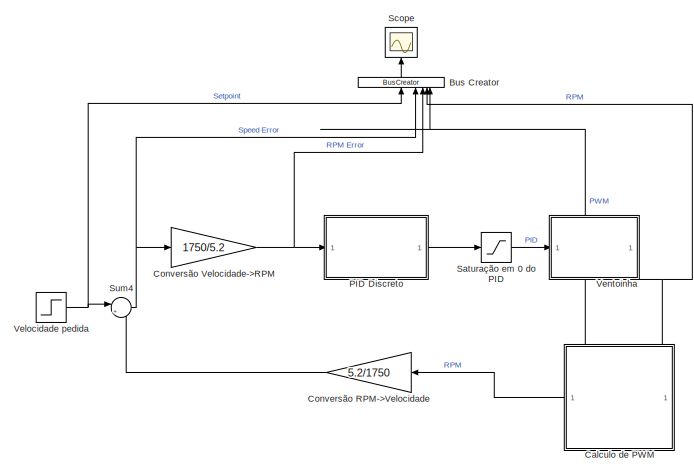
[diagram: root canvas - part 1/2, left side, full height]
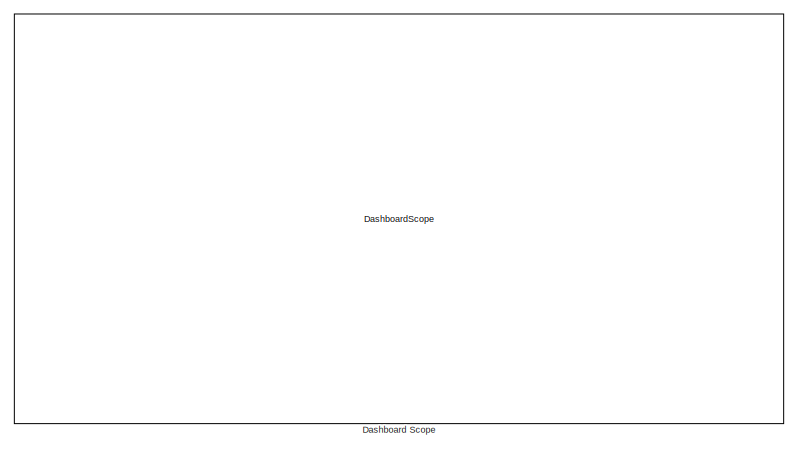
[diagram: root canvas - part 2/2, right side, full height]
MODEL slx_a42d7b1610c5
KIND model
CONFIG AbsTol = auto
CONFIG EnableMultiTasking = off
CONFIG FixedStep = auto
CONFIG MaxStep = auto
CONFIG MinStep = auto
CONFIG RelTol = 1e-3
CONFIG SampleTimeConstraint = Unconstrained
CONFIG SolverName = VariableStepAuto
CONFIG StartTime = 0.0
CONFIG StopTime = 100
BLOCK [BusCreator] Bus Creator
  DisplayOption = bar
  InheritFromInputs = on
  Inputs = 5
  NameLocation = right
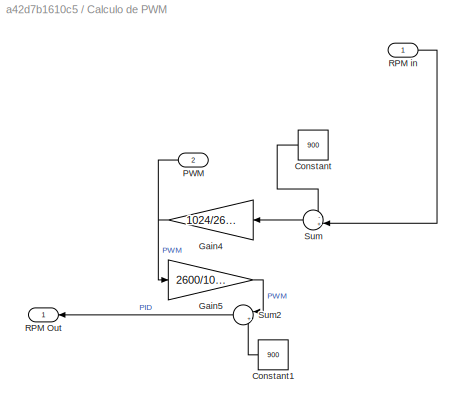
BLOCK [SubSystem] Calculo de PWM
  PortSchema = {"entries":[{"content":{"sides":[{"content":{"connectorIds":["Out2"]},"type":"ConnectorPlacement.EquallySpacedRectSide","uuid":"a240e75c-ea08-4aa3-822f-b73cad036c4a"},{"content":{"connectorIds":["Out1"],"side":"RIGHT"},"type":"ConnectorPlacement.EquallySpacedRectSide","uuid":"da6ac24d-a89c-4014-9688-266e0e62c615"},{"content":{"connectorIds":["In1"],"side":"TOP"},"type":"ConnectorPlacement.EquallyS...<+246ch>
BLOCK [Constant] Calculo de PWM/Constant
  Value = 900
BLOCK [Constant] Calculo de PWM/Constant1
  Value = 900
BLOCK [Gain] Calculo de PWM/Gain4
  Gain = 1024/2600
BLOCK [Gain] Calculo de PWM/Gain5
  Gain = 2600/1024
  NameLocation = top
BLOCK [Outport] Calculo de PWM/PWM
  Port = 2
BLOCK [Outport] Calculo de PWM/RPM Out
BLOCK [Inport] Calculo de PWM/RPM in
BLOCK [Sum] Calculo de PWM/Sum
  Inputs = -+|
BLOCK [Sum] Calculo de PWM/Sum2
  Inputs = |++
BLOCK [Gain] Conversão RPM->Velocidade
  Gain = 5.2/1750
  NameLocation = top
BLOCK [Gain] Conversão Velocidade->RPM
  Gain = 1750/5.2
BLOCK [DashboardScope] Dashboard Scope
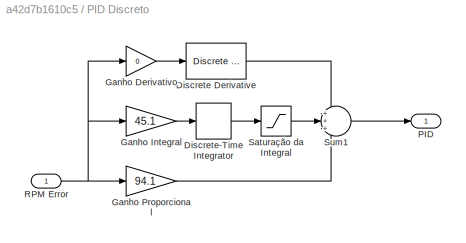
BLOCK [SubSystem] PID Discreto
BLOCK [Reference] PID Discreto/Discrete Derivative  REF=simulink/Discrete/Discrete Derivative
  SourceBlock = simulink/Discrete/Discrete Derivative
  SourceType = Discrete Derivative
BLOCK [DiscreteIntegrator] PID Discreto/Discrete-Time Integrator
  ICPrevOutput = DiscIntNeverNeededParam
  ICPrevScaledInput = DiscIntNeverNeededParam
  InitialConditionSetting = Auto
  SampleTime = -1
BLOCK [Gain] PID Discreto/Ganho Derivativo
  Gain = 0
BLOCK [Gain] PID Discreto/Ganho Integral
  Gain = 45.1
BLOCK [Gain] PID Discreto/Ganho Proporcional
  Gain = 94.1
BLOCK [Outport] PID Discreto/PID
BLOCK [Inport] PID Discreto/RPM Error
BLOCK [Saturate] PID Discreto/Saturação da Integral
  LowerLimit = 0
  UpperLimit = 10000
BLOCK [Sum] PID Discreto/Sum1
  Inputs = +++
BLOCK [Saturate] Saturação em 0 do PID
  LowerLimit = 0
  UpperLimit = 10000
BLOCK [Scope] Scope
  Floating = off
  NameLocation = right
  NumInputPorts = 1
  ScopeSpecificationString = Simulink.scopes.TimeScopeBlockCfg('CurrentConfiguration', extmgr.ConfigurationSet(extmgr.Configuration('Core','General UI',true),extmgr.Configuration('Core','Source UI',true),extmgr.Configuration('Sources','WiredSimulink',true),extmgr.Configuration('Visuals','Time Domain',true,'SerializedDisplays',{struct('MinYLimReal','-1265.22557','MaxYLimReal','2195.1067','YLabelReal','','MinYLimMag','  0.00000...<+1461ch>
BLOCK [Sum] Sum4
  Inputs = |+-
BLOCK [Step] Velocidade pedida
  After = 7
  SampleTime = 0
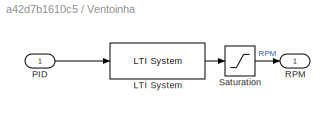
BLOCK [SubSystem] Ventoinha
  PortSchema = {"entries":[{"content":{"sides":[{"content":{"connectorIds":["In1"]},"type":"ConnectorPlacement.EquallySpacedRectSide","uuid":"b947db97-fa09-4e3b-b416-4cd776b95088"},{"content":{"side":"RIGHT"},"type":"ConnectorPlacement.EquallySpacedRectSide","uuid":"db74d998-fecc-49fa-b45f-57676d45925c"},{"content":{"side":"TOP"},"type":"ConnectorPlacement.EquallySpacedRectSide","uuid":"dcd3bfb3-f90e-48a9-9950-5...<+348ch>
BLOCK [Reference] Ventoinha/LTI System  REF=cstblocks/LTI System
  SourceBlock = cstblocks/LTI System
  SourceType = LTI Block
BLOCK [Inport] Ventoinha/PID
BLOCK [Outport] Ventoinha/RPM
BLOCK [Saturate] Ventoinha/Saturation
  LowerLimit = 900
  UpperLimit = 3600
LINE Bus Creator:1 -> Scope:1
LINE Calculo de PWM/Constant1:1 -> Calculo de PWM/Sum2:2
LINE Calculo de PWM/Constant:1 -> Calculo de PWM/Sum:1
NET Calculo de PWM/Gain4:1 -> Calculo de PWM/Gain5:1, Calculo de PWM/PWM:1
LINE Calculo de PWM/Gain5:1 -> Calculo de PWM/Sum2:1
LINE Calculo de PWM/RPM in:1 -> Calculo de PWM/Sum:2
LINE Calculo de PWM/Sum2:1 -> Calculo de PWM/RPM Out:1
LINE Calculo de PWM/Sum:1 -> Calculo de PWM/Gain4:1
LINE Calculo de PWM:1 -> Conversão RPM->Velocidade:1
LINE Calculo de PWM:2 -> Bus Creator:5
LINE Conversão RPM->Velocidade:1 -> Sum4:2
NET Conversão Velocidade->RPM:1 -> Bus Creator:3, PID Discreto:1
LINE PID Discreto/Discrete Derivative:1 -> PID Discreto/Sum1:1
LINE PID Discreto/Discrete-Time Integrator:1 -> PID Discreto/Saturação da Integral:1
LINE PID Discreto/Ganho Derivativo:1 -> PID Discreto/Discrete Derivative:1
LINE PID Discreto/Ganho Integral:1 -> PID Discreto/Discrete-Time Integrator:1
LINE PID Discreto/Ganho Proporcional:1 -> PID Discreto/Sum1:3
NET PID Discreto/RPM Error:1 -> PID Discreto/Ganho Derivativo:1, PID Discreto/Ganho Integral:1, PID Discreto/Ganho Proporcional:1
LINE PID Discreto/Saturação da Integral:1 -> PID Discreto/Sum1:2
LINE PID Discreto/Sum1:1 -> PID Discreto/PID:1
LINE PID Discreto:1 -> Saturação em 0 do PID:1
LINE Saturação em 0 do PID:1 -> Ventoinha:1
NET Sum4:1 -> Bus Creator:2, Conversão Velocidade->RPM:1
NET Velocidade pedida:1 -> Bus Creator:1, Sum4:1
LINE Ventoinha/LTI System:1 -> Ventoinha/Saturation:1
LINE Ventoinha/PID:1 -> Ventoinha/LTI System:1
LINE Ventoinha/Saturation:1 -> Ventoinha/RPM:1
NET Ventoinha:1 -> Bus Creator:4, Calculo de PWM:1
note: NET lines group one-source signal fan-out (src -> all destinations, sorted); 1:1 wires keep LINE
